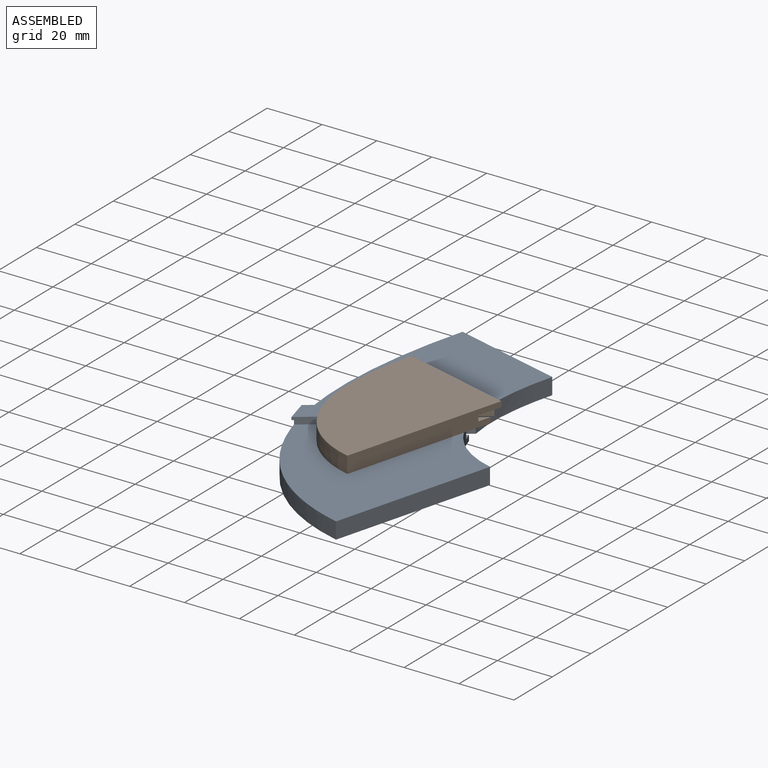
[diagram: assembled view]
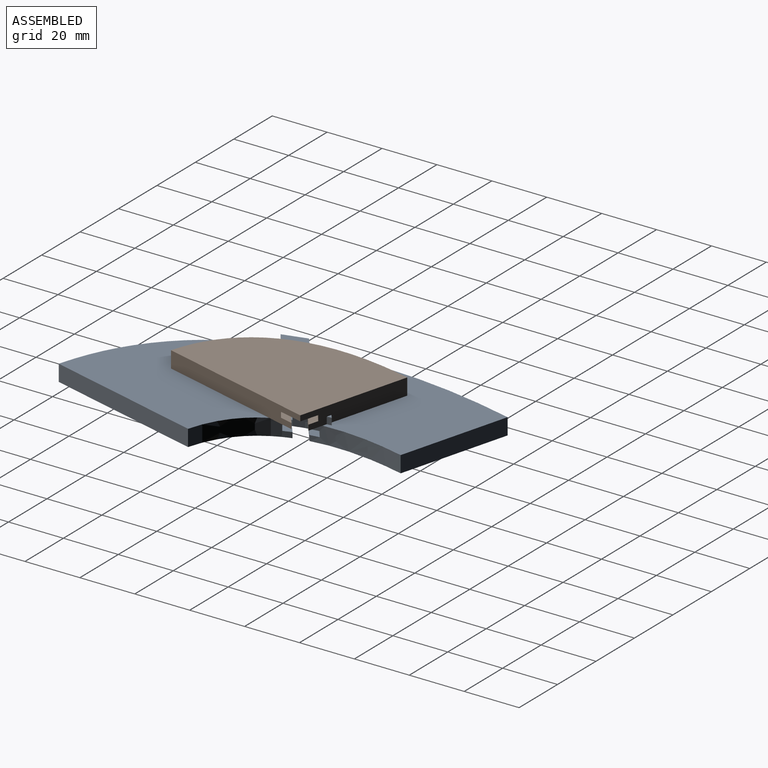
[diagram: assembled view, second angle]
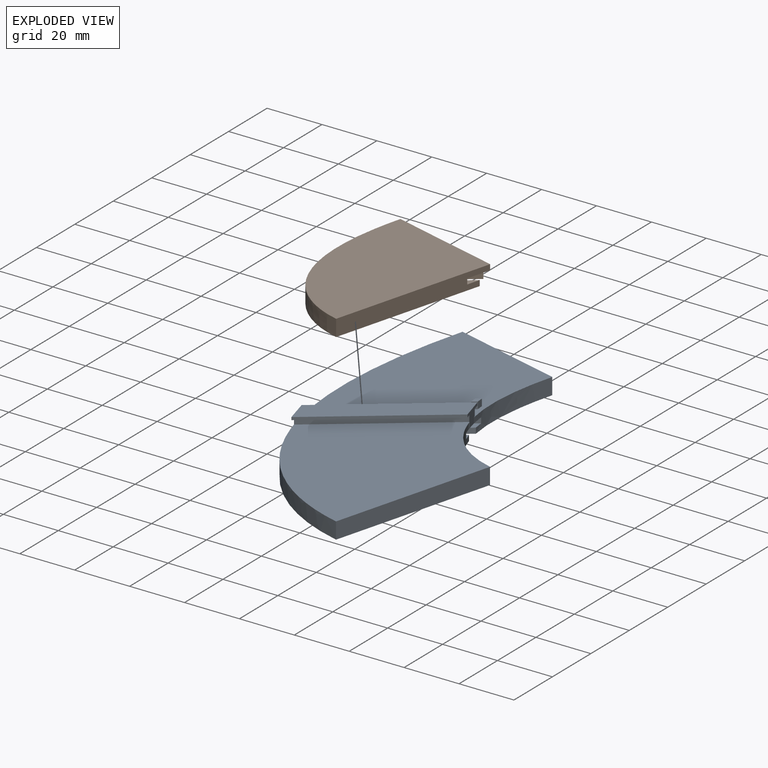
[diagram: exploded view]
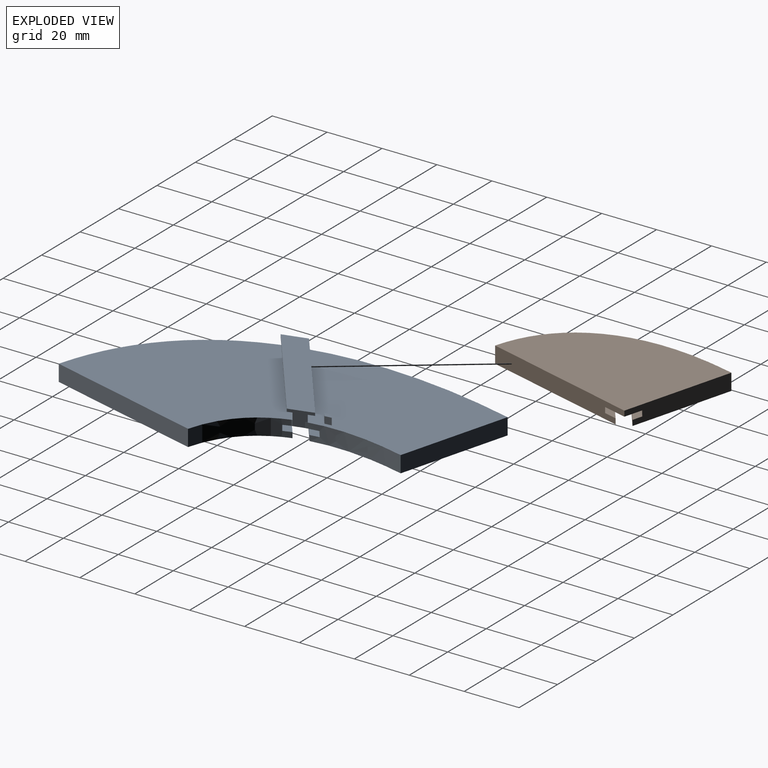
[diagram: exploded view, second angle]
ASSEMBLY  parts=2 mates=2
PART A: 40 faces, bbox 115.2x78.5x9.7 mm
  f0: extruded ~36.28x6.82mm, area 210.6mm2, adj f2,f5,f7,f10,f13,f14,f16,f18
  f1: plane 0.48x0.28mm, normal (0,0,-1), area 0mm2, adj f3,f17,f30
  f2: plane 76.75x49mm, normal (0,0,1), area 2505.4mm2, adj f0,f3,f7,f18,f24,f25,f26,f27
  f3: extruded ~115x78.33mm, area 905.1mm2, adj f1,f2,f5,f6,f7,f8,f9,f10
  f4: extruded ~27.9x15.23mm, area 192.8mm2, adj f6,f8,f9,f10,f11,f12,f15,f34
  f5: plane 41.46x32.39mm, normal (-0.62,-0.79,0), area 105.2mm2, adj f0,f3,f14,f16
  f6: plane 41.35x32.31mm, normal (0.62,0.79,0), area 105mm2, adj f3,f4,f11,f15
  f7: plane 41.67x6mm, normal (1,0,0), area 250mm2, adj f0,f2,f3,f16
  f8: plane 60x6mm, normal (0,-1,0), area 360mm2, adj f3,f4,f9,f15
  f9: plane 75.63x62.64mm, normal (0,0,1), area 3005.8mm2, adj f3,f4,f8,f17,f31,f32,f34
  f10: plane 52.15x38.35mm, normal (0,0,-1), area 578.4mm2, adj f0,f3,f4,f12,f13,f33
  f11: plane 44.05x34.09mm, normal (0,0,1), area 157.6mm2, adj f3,f4,f6,f12
  f12: plane 41.44x32.38mm, normal (0.62,0.79,0), area 105.2mm2, adj f3,f4,f10,f11
  f13: plane 41.68x32.56mm, normal (-0.62,-0.79,0), area 105.8mm2, adj f0,f3,f10,f14
  f14: plane 44.64x33.9mm, normal (0,0,1), area 158.2mm2, adj f0,f3,f5,f13
  f15: plane 76x60.24mm, normal (0,0,-1), area 2838.6mm2, adj f3,f4,f6,f8,f35,f36,f37,f38
  f16: plane 76.48x48.32mm, normal (0,0,-1), area 2483.4mm2, adj f0,f3,f5,f7
  f17: plane 7.78x4.53mm, normal (-0.5,0.86,0), area 21.1mm2, adj f1,f9,f19,f20,f21,f22,f23,f30
  f18: plane 7.86x5.65mm, normal (0.51,-0.86,0), area 28.5mm2, adj f0,f2,f19,f20,f21,f22,f23,f29
  f19: plane 43.28x33.54mm, normal (0,0,-1), area 114.5mm2, adj f17,f18,f20,f31,f32
  f20: plane 41.42x32.36mm, normal (-0.62,-0.79,0), area 52.6mm2, adj f17,f18,f19,f22
  f21: plane 41.36x32.31mm, normal (0.62,0.79,0), area 52.5mm2, adj f17,f18,f22,f23
  f22: plane 49.13x36.9mm, normal (0,0,1), area 439mm2, adj f17,f18,f20,f21
  f23: plane 43.23x33.51mm, normal (0,0,-1), area 114.3mm2, adj f17,f18,f21,f29,f30
  f24: plane 2.5x1.59mm, normal (-0.62,-0.79,0), area 5mm2, adj f2,f25,f27,f28
  f25: plane 2.5x2.34mm, normal (-0.36,0.93,0), area 6.3mm2, adj f2,f24,f26,f28
  f26: plane 2.5x1.59mm, normal (0.62,0.79,0), area 5mm2, adj f2,f25,f27,f28
  f27: plane 2.5x2.34mm, normal (0.36,-0.93,0), area 6.3mm2, adj f2,f24,f26,f28
  f28: plane 3.92x2.14mm, normal (0,0,1), area 4.3mm2, adj f24,f25,f26,f27
  f29: plane 41.22x32.2mm, normal (0.62,0.79,0), area 130.8mm2, adj f2,f18,f23,f30
  f30: plane 2.5x0.39mm, normal (0.79,-0.62,0), area 1.3mm2, adj f1,f2,f17,f23,f29
  f31: plane 2.5x0.39mm, normal (-0.79,0.62,0), area 1.2mm2, adj f9,f18,f19,f32
  f32: plane 41.25x32.23mm, normal (-0.62,-0.79,0), area 130.9mm2, adj f9,f17,f19,f31
  f33: bspline ~8.16x6.92mm, area 0.4mm2, adj f10,f18,f34
  f34: cylinder r=1mm len=2mm, axis (0,0,-1), area 0.9mm2, adj f4,f9,f18,f33
  f35: plane 3x2.51mm, normal (0.58,-0.82,0), area 9.2mm2, adj f15,f36,f38,f39
  f36: plane 37.56x29.35mm, normal (-0.62,-0.79,0), area 143mm2, adj f15,f35,f37,f39
  f37: plane 3x2.27mm, normal (-0.66,0.76,0), area 9mm2, adj f15,f36,f38,f39
  f38: plane 37.81x29.54mm, normal (0.62,0.79,0), area 143.9mm2, adj f15,f35,f37,f39
  f39: plane 40.07x31.31mm, normal (0,0,-1), area 140.8mm2, adj f35,f36,f37,f38
PART B: 18 faces, bbox 60x41.7x6 mm
  f0: plane 39.38x38.49mm, normal (0,0,-1), area 707.4mm2, adj f1,f2,f4,f13,f14,f15,f16
  f1: plane 41.67x6mm, normal (1,0,0), area 229.7mm2, adj f0,f2,f3,f4,f6,f7,f10,f11
  f2: extruded ~60x41.67mm, area 460.1mm2, adj f0,f1,f3,f4,f5,f6,f7,f8
  f3: plane 60x6mm, normal (0,-1,0), area 334mm2, adj f1,f2,f5,f6,f7,f8,f9,f12
  f4: plane 39.33x30.73mm, normal (-0.62,-0.79,0), area 99.8mm2, adj f0,f1,f2,f10
  f5: plane 39.88x31.15mm, normal (0.62,0.79,0), area 101.2mm2, adj f2,f3,f8,f12
  f6: plane 60x41.67mm, normal (0,0,1), area 2056.4mm2, adj f1,f2,f3
  f7: plane 46.45x35.37mm, normal (0,0,-1), area 549.4mm2, adj f1,f2,f3,f9,f11
  f8: plane 42.38x31.16mm, normal (0,0,1), area 147.4mm2, adj f2,f3,f5,f9
  f9: plane 37.51x29.3mm, normal (0.62,0.79,0), area 95.2mm2, adj f2,f3,f7,f8
  f10: plane 39.34x32.19mm, normal (0,0,1), area 144.1mm2, adj f1,f2,f4,f11
  f11: plane 36.32x28.37mm, normal (-0.62,-0.79,0), area 92.2mm2, adj f1,f2,f7,f10
  f12: plane 55.94x31.17mm, normal (0,0,-1), area 978.1mm2, adj f2,f3,f5
  f13: plane 29.63x23.15mm, normal (0.62,0.79,0), area 150.4mm2, adj f0,f14,f16,f17
  f14: plane 4x3.27mm, normal (0.36,-0.93,0), area 14mm2, adj f0,f13,f15,f17
  f15: plane 29.63x23.15mm, normal (-0.62,-0.79,0), area 150.4mm2, adj f0,f14,f16,f17
  f16: plane 4x3.27mm, normal (-0.36,0.93,0), area 14mm2, adj f0,f13,f15,f17
  f17: plane 32.91x24.4mm, normal (0,0,-1), area 112.8mm2, adj f13,f14,f15,f16
PLACE A rot(axis=(0,0,1),75deg) t=(-35.89,49.43,51.68)mm
PLACE B rot(axis=(0,0,1),75deg) t=(-66.59,25.67,57.68)mm
MATE planar A.f29 <-> B.f4  axis (-0.6,0.8,0) through (-116.12,-8.53,60.93)mm
MATE planar B.f12 <-> A.f9  axis (0,0,-1) through (-87.07,-8.09,59.68)mm
